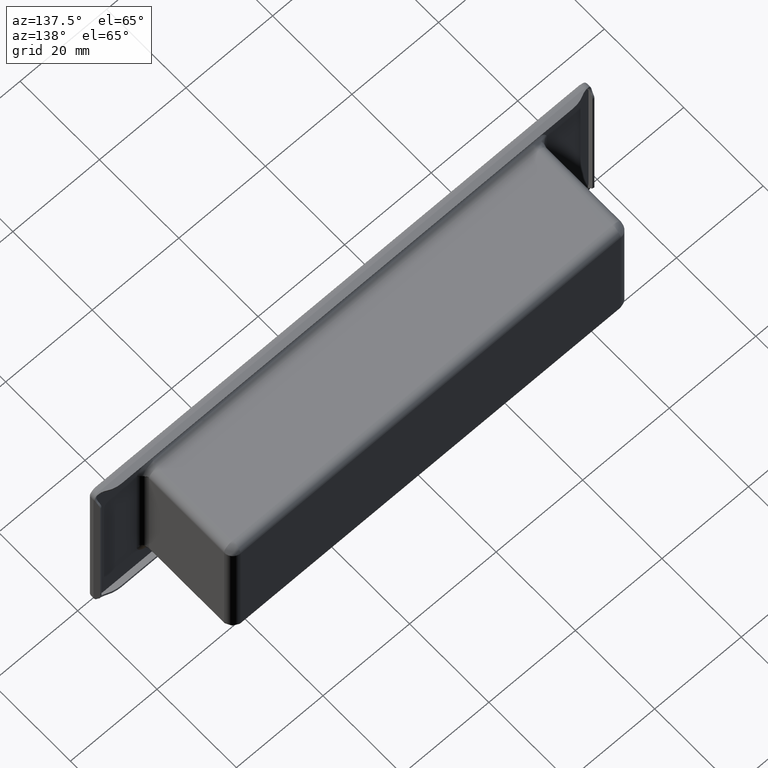
[diagram: clean part render]
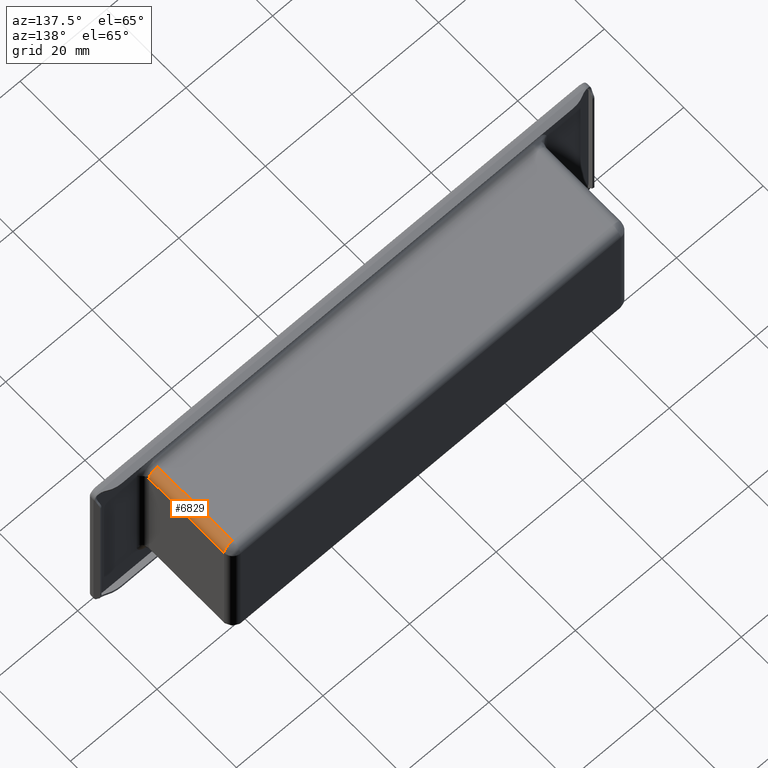
[diagram: same view with one face highlighted and labeled with its STEP entity id]
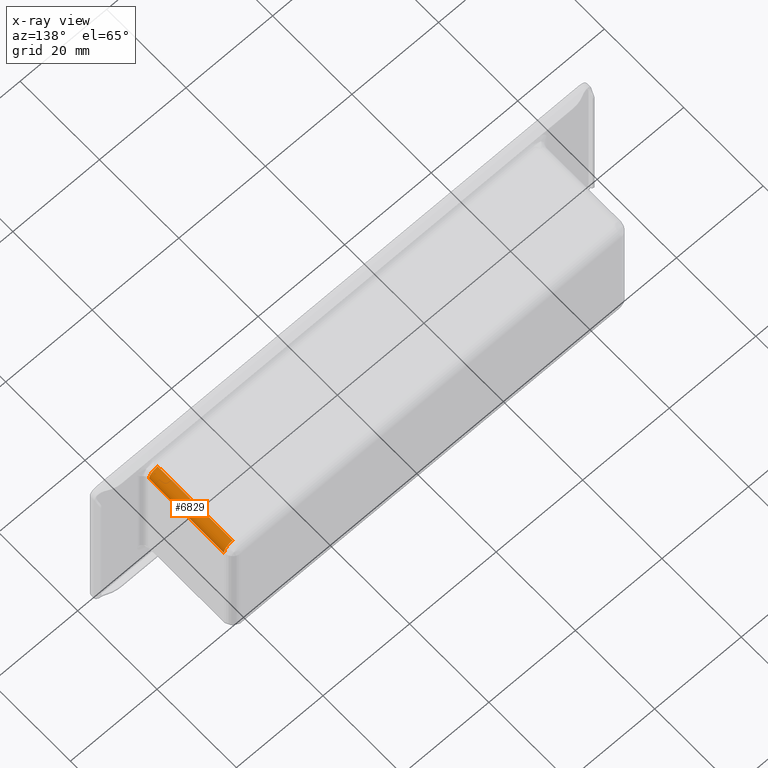
[diagram: x-ray of the same camera — body ghosted, the highlighted face saturated]
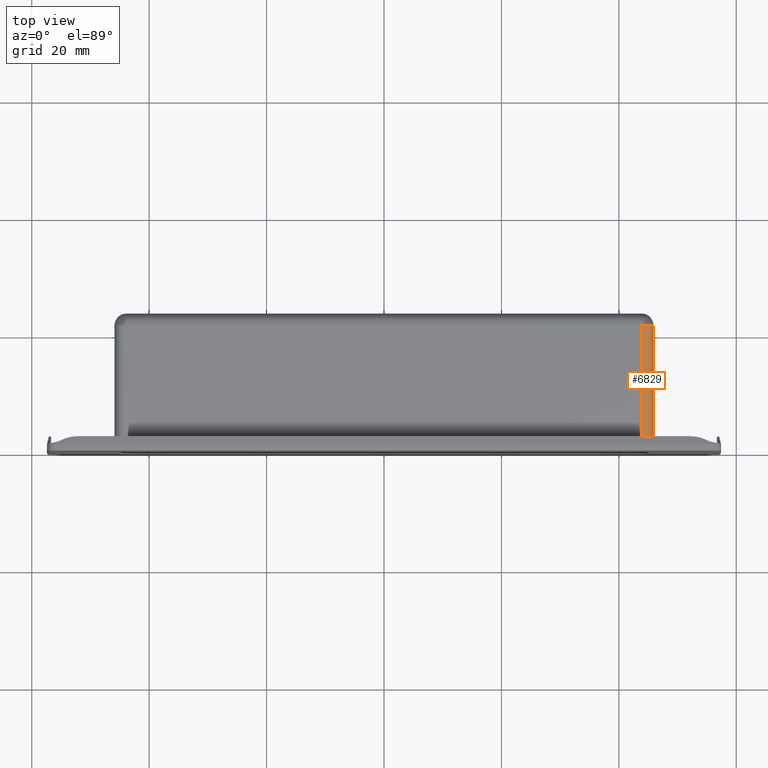
[diagram: same view with one face highlighted and labeled with its STEP entity id]
A machine part, auxiliary view. The second image highlights one B-rep face of the part: STEP entity #6829.
The next image is the same camera in x-ray: the body ghosted, the highlighted face saturated — about 0% of this face is hidden behind the body in this view.
A second angle (top view) of the same face is appended — the face is thin or edge-on in the first view.
In plain terms, the highlighted face is a freeform B-spline surface patch.
Its self-contained STEP definition (entity closure, byte-faithful):
#5889=CARTESIAN_POINT('',(45.900000000000013,21.500000000000000,13.899999999999860));
#5890=VERTEX_POINT('',#5889);
#6292=CARTESIAN_POINT('',(45.900000000000013,2.600000000000000,13.899999999999860));
#6293=VERTEX_POINT('',#6292);
#6294=CARTESIAN_POINT('',(45.900000000000013,21.500000000000000,13.899999999999860));
#6295=CARTESIAN_POINT('',(45.900000000000013,2.600000000000000,13.899999999999860));
#6296=QUASI_UNIFORM_CURVE('',1,(#6294,#6295),.UNSPECIFIED.,.F.,.U.);
#6297=EDGE_CURVE('',#5890,#6293,#6296,.T.);
#6486=CARTESIAN_POINT('',(43.899999999999999,2.600000000000000,15.900000000000000));
#6487=VERTEX_POINT('',#6486);
#6501=CARTESIAN_POINT('',(43.899999999999999,2.600000000000000,15.900000000000000));
#6502=CARTESIAN_POINT('',(44.194585210509679,2.600000000000005,15.900386254008600));
#6503=CARTESIAN_POINT('',(44.701476795628793,2.599999999999996,15.785901379964701));
#6504=CARTESIAN_POINT('',(45.248008413003667,2.600000000000009,15.410757279662869));
#6505=CARTESIAN_POINT('',(45.555296609053563,2.599999999999996,15.045378969899510));
#6506=CARTESIAN_POINT('',(45.816712826192799,2.600000000000011,14.570627113083960));
#6507=CARTESIAN_POINT('',(45.900381899850103,2.599999999999998,14.178242741576019));
#6508=CARTESIAN_POINT('',(45.900000000000013,2.600000000000000,13.899999999999860));
#6509=B_SPLINE_CURVE_WITH_KNOTS('',3,(#6501,#6502,#6503,#6504,#6505,#6506,#6507,#6508),.UNSPECIFIED.,.F.,.U.,(4,1,1,1,1,4),(0.000000245827567,0.883602400932337,1.521781385031891,1.963538902264577,2.307162978442584,3.141671488692723),.UNSPECIFIED.);
#6510=EDGE_CURVE('',#6487,#6293,#6509,.T.);
#6742=CARTESIAN_POINT('',(43.899999999999999,21.500000000000000,15.900000000000000));
#6743=VERTEX_POINT('',#6742);
#6789=CARTESIAN_POINT('',(43.899999999999999,21.500000000000000,15.900000000000000));
#6790=CARTESIAN_POINT('',(44.194585210509707,21.500000000000039,15.900386254008600));
#6791=CARTESIAN_POINT('',(44.701476795628757,21.499999999999940,15.785901379964701));
#6792=CARTESIAN_POINT('',(45.248008413003689,21.500000000000089,15.410757279662869));
#6793=CARTESIAN_POINT('',(45.555296609053563,21.499999999999950,15.045378969899510));
#6794=CARTESIAN_POINT('',(45.816712826192799,21.500000000000110,14.570627113083960));
#6795=CARTESIAN_POINT('',(45.900381899850103,21.499999999999972,14.178242741576019));
#6796=CARTESIAN_POINT('',(45.900000000000013,21.500000000000000,13.899999999999860));
#6797=B_SPLINE_CURVE_WITH_KNOTS('',3,(#6789,#6790,#6791,#6792,#6793,#6794,#6795,#6796),.UNSPECIFIED.,.F.,.U.,(4,1,1,1,1,4),(0.000000245827567,0.883602400932337,1.521781385031891,1.963538902264577,2.307162978442584,3.141671488692723),.UNSPECIFIED.);
#6798=EDGE_CURVE('',#6743,#5890,#6797,.T.);
#6805=CARTESIAN_POINT('',(45.899314649951123,2.127500000000000,13.847646103384109));
#6806=CARTESIAN_POINT('',(45.899314649951123,21.984312500000001,13.847646103384109));
#6807=CARTESIAN_POINT('',(45.956984520332533,2.127500000000001,16.049969601109307));
#6808=CARTESIAN_POINT('',(45.956984520332533,21.984312499999998,16.049969601109307));
#6809=CARTESIAN_POINT('',(43.759359848748012,2.127500000000000,15.895048958761487));
#6810=CARTESIAN_POINT('',(43.759359848748012,21.984312500000005,15.895048958761487));
#6818=(BOUNDED_SURFACE()B_SPLINE_SURFACE(1,2,((#6805,#6807,#6809),(#6806,#6808,#6810)),.UNSPECIFIED.,.F.,.F.,.U.)B_SPLINE_SURFACE_WITH_KNOTS((2,2),(3,3),(0.0,19.856812500000000),(0.0,3.542284688176744),.UNSPECIFIED.)GEOMETRIC_REPRESENTATION_ITEM()RATIONAL_B_SPLINE_SURFACE(((1.0,0.670944223154768,0.996392648609106),(1.0,0.670944223154768,0.996392648609106)))REPRESENTATION_ITEM('')SURFACE());
#6819=CARTESIAN_POINT('',(43.899999999999999,2.600000000000000,15.900000000000000));
#6820=CARTESIAN_POINT('',(43.899999999999999,21.500000000000000,15.900000000000000));
#6821=QUASI_UNIFORM_CURVE('',1,(#6819,#6820),.UNSPECIFIED.,.F.,.U.);
#6822=EDGE_CURVE('',#6487,#6743,#6821,.T.);
#6823=ORIENTED_EDGE('',*,*,#6822,.F.);
#6824=ORIENTED_EDGE('',*,*,#6510,.T.);
#6825=ORIENTED_EDGE('',*,*,#6297,.F.);
#6826=ORIENTED_EDGE('',*,*,#6798,.F.);
#6827=EDGE_LOOP('',(#6823,#6824,#6825,#6826));
#6828=FACE_OUTER_BOUND('',#6827,.T.);
#6829=ADVANCED_FACE('',(#6828),#6818,.T.);